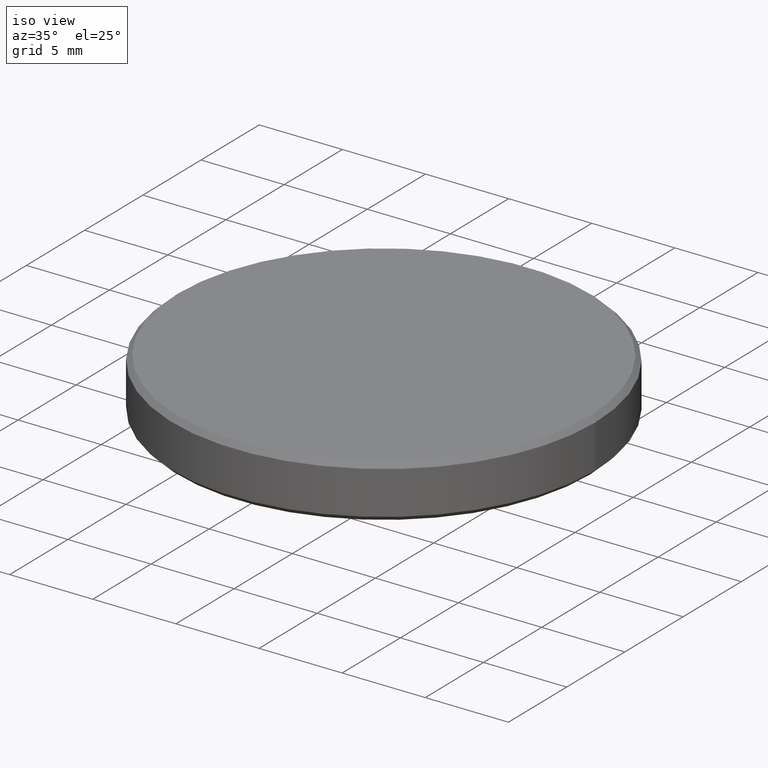
[diagram: clean part render]
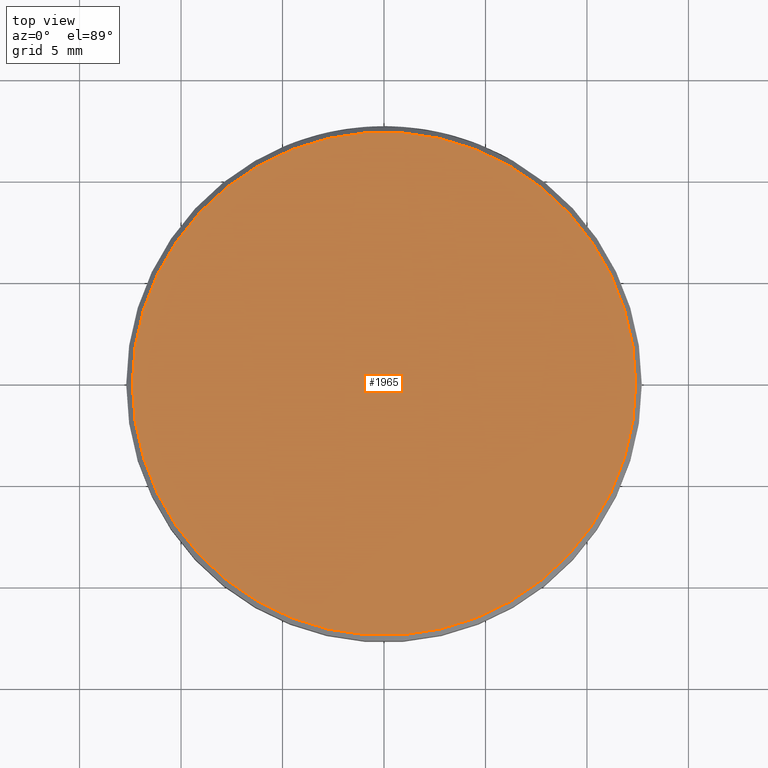
[diagram: tour spotlight — one face highlighted and labeled with its STEP entity id]
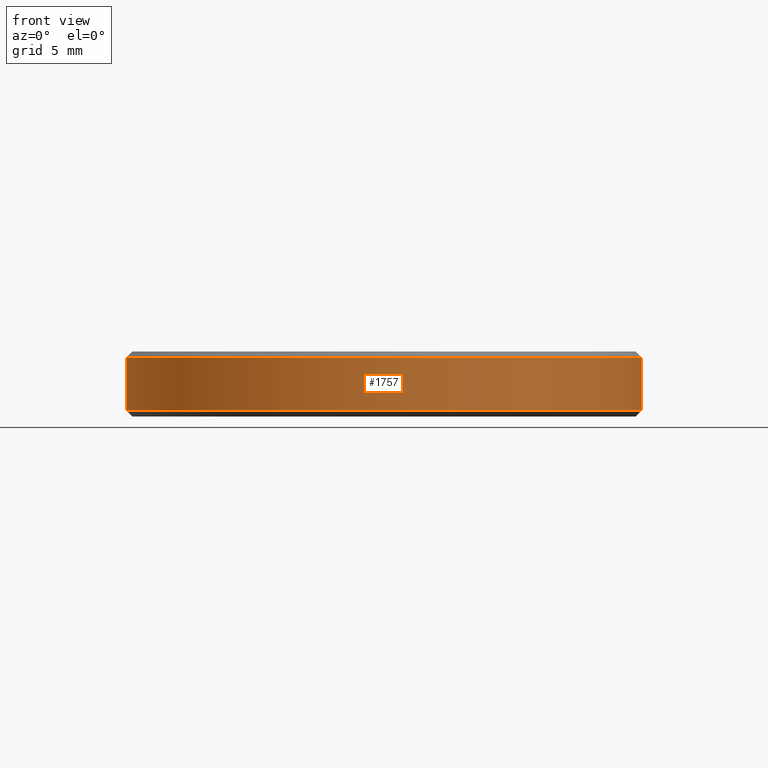
[diagram: tour spotlight — one face highlighted and labeled with its STEP entity id]
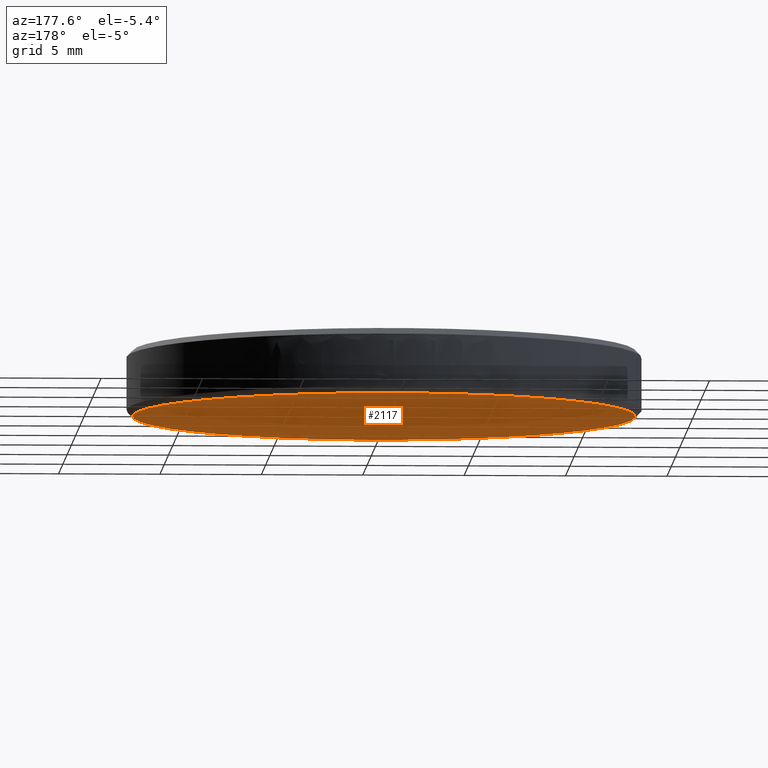
[diagram: tour spotlight — one face highlighted and labeled with its STEP entity id]
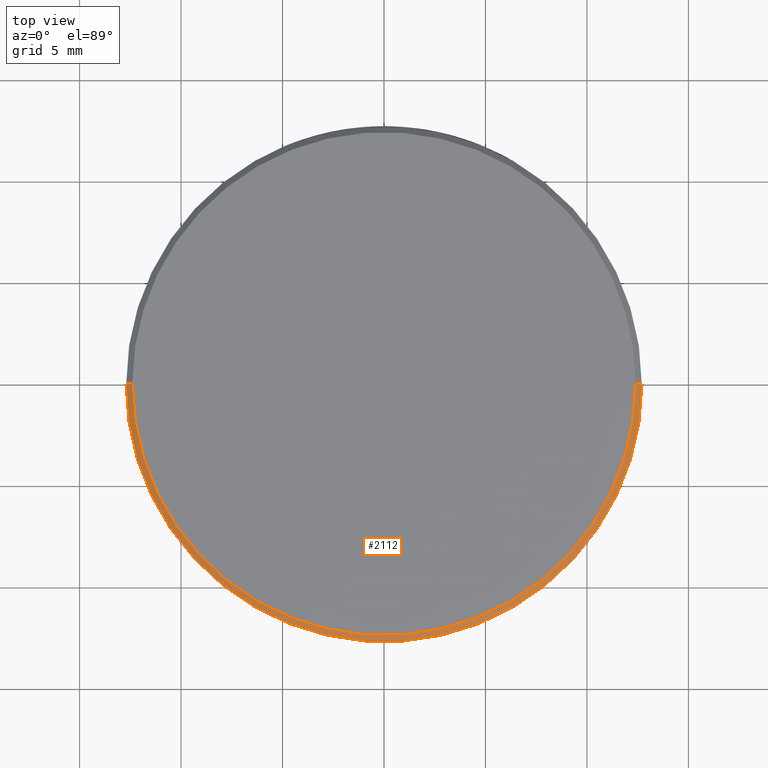
[diagram: tour spotlight — one face highlighted and labeled with its STEP entity id]
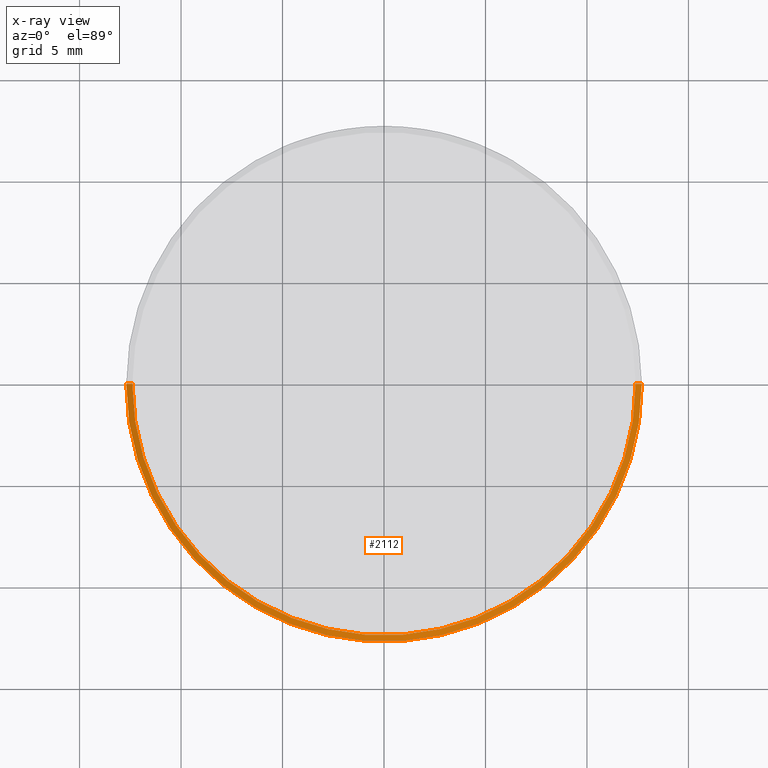
[diagram: x-ray of the same camera — body ghosted, this tour face saturated]
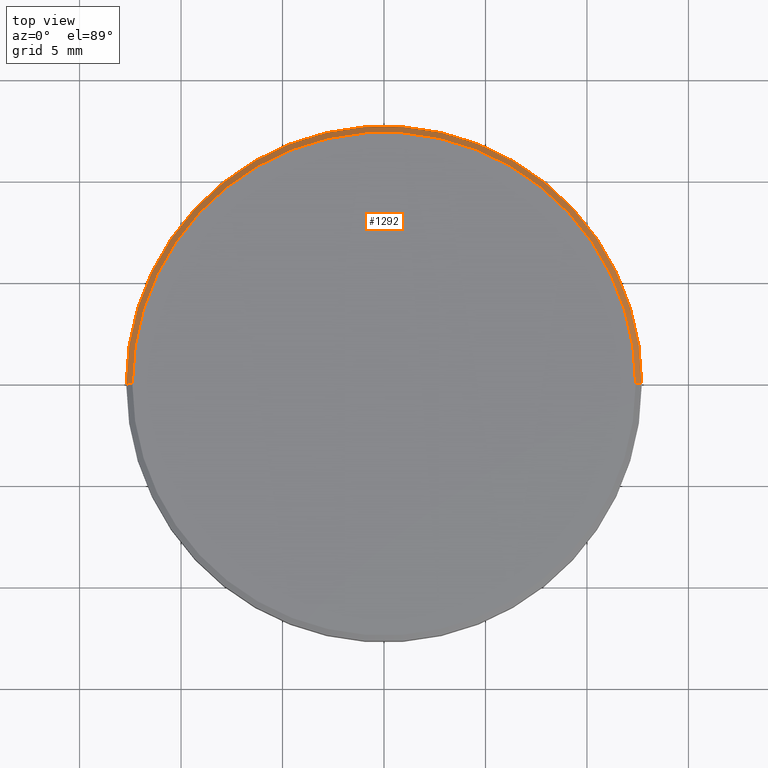
[diagram: tour spotlight — one face highlighted and labeled with its STEP entity id]
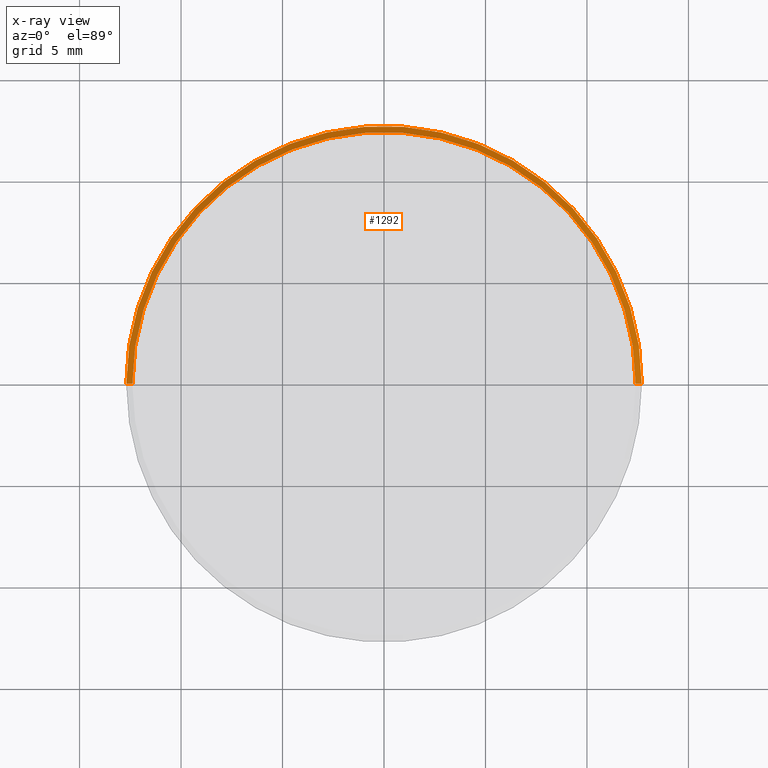
[diagram: x-ray of the same camera — body ghosted, this tour face saturated]
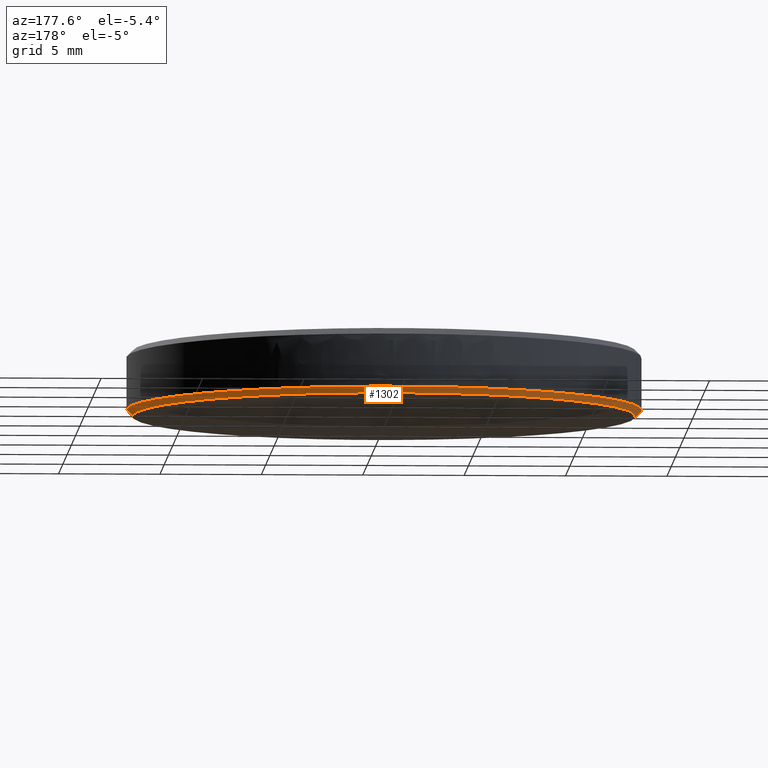
[diagram: tour spotlight — one face highlighted and labeled with its STEP entity id]
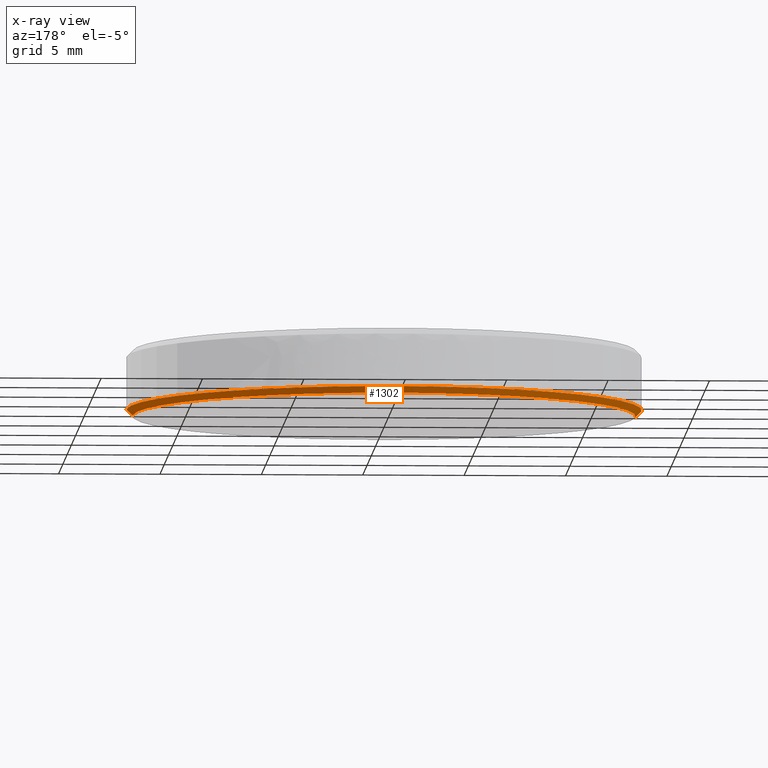
[diagram: x-ray of the same camera — body ghosted, this tour face saturated]
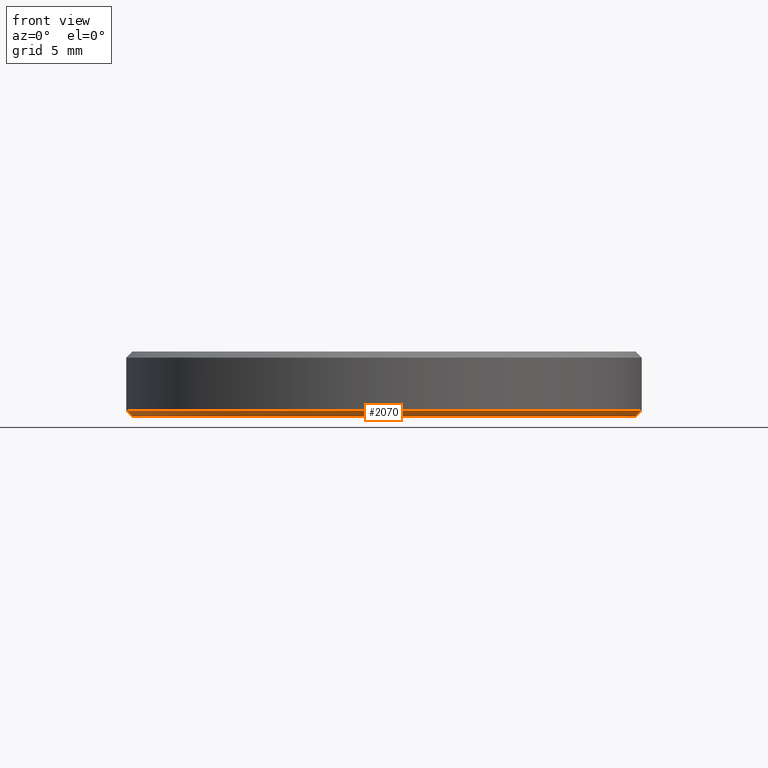
[diagram: tour spotlight — one face highlighted and labeled with its STEP entity id]
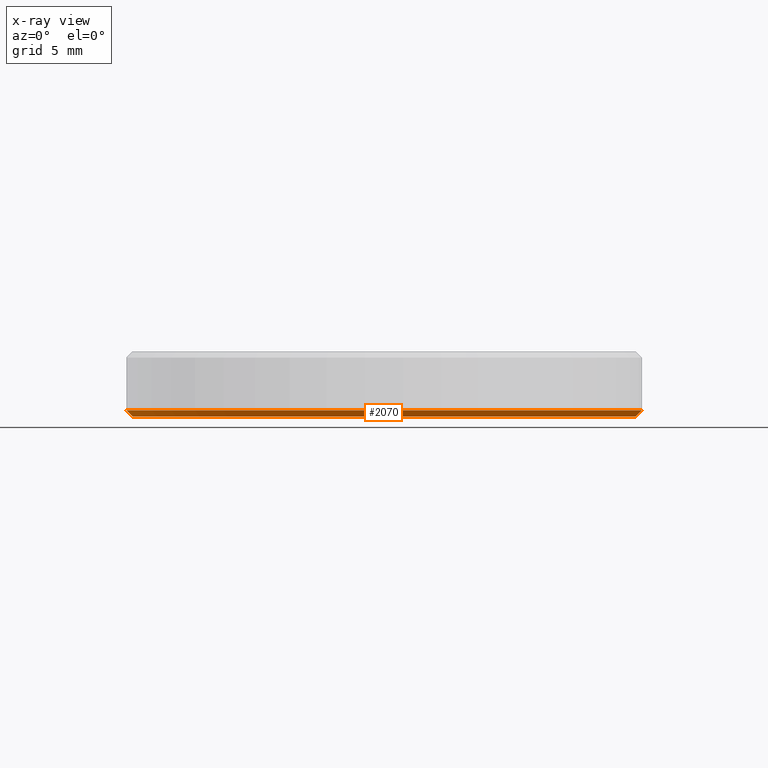
[diagram: x-ray of the same camera — body ghosted, this tour face saturated]
A machine part: a face-by-face anatomy tour. The part has 21 B-rep faces; the first image is the clean iso view, then the 7 largest visible faces are spotlighted one at a time (largest first), each with its STEP entity span.

Face 1 — top view, entity #1965. In plain terms, the highlighted planar face has unit normal (-0, 0, 1).
Definition (entity closure, byte-faithful):
#941 = DIRECTION ( 'NONE',  ( -0.0000000000000000000, 0.0000000000000000000, 1.000000000000000000 ) ) ;
#956 = CARTESIAN_POINT ( 'NONE',  ( 1.557671338699901100E-015, -39.68355697996825200, 1.599999999999999200 ) ) ;
#973 = FACE_OUTER_BOUND ( 'NONE', #1964, .T. ) ;
#974 = DIRECTION ( 'NONE',  ( 1.000000000000000000, 0.0000000000000000000, 0.0000000000000000000 ) ) ;
#1055 = AXIS2_PLACEMENT_3D ( 'NONE', #956, #941, #974 ) ;
#1094 = PLANE ( 'NONE',  #1055 ) ;
#1149 = DIRECTION ( 'NONE',  ( -0.0000000000000000000, 0.0000000000000000000, 1.000000000000000000 ) ) ;
#1222 = DIRECTION ( 'NONE',  ( 1.000000000000000000, 0.0000000000000000000, 0.0000000000000000000 ) ) ;
#1223 = AXIS2_PLACEMENT_3D ( 'NONE', #1235, #1149, #1222 ) ;
#1235 = CARTESIAN_POINT ( 'NONE',  ( 0.0000000000000000000, 0.0000000000000000000, 1.599999999999999200 ) ) ;
#1256 = CIRCLE ( 'NONE', #1223, 12.39999999999999700 ) ;
#1289 = EDGE_CURVE ( 'NONE', #1315, #1293, #1992, .T. ) ;
#1293 = VERTEX_POINT ( 'NONE', #2229 ) ;
#1315 = VERTEX_POINT ( 'NONE', #2423 ) ;
#1964 = EDGE_LOOP ( 'NONE', ( #1966, #2057 ) ) ;
#1965 = ADVANCED_FACE ( 'NONE', ( #973 ), #1094, .T. ) ;
#1966 = ORIENTED_EDGE ( 'NONE', *, *, #2171, .T. ) ;
#1992 = CIRCLE ( 'NONE', #1993, 12.39999999999999700 ) ;
#1993 = AXIS2_PLACEMENT_3D ( 'NONE', #2046, #2094, #2087 ) ;
#2046 = CARTESIAN_POINT ( 'NONE',  ( 0.0000000000000000000, 0.0000000000000000000, 1.599999999999999200 ) ) ;
#2057 = ORIENTED_EDGE ( 'NONE', *, *, #1289, .T. ) ;
#2087 = DIRECTION ( 'NONE',  ( 1.000000000000000000, 0.0000000000000000000, 0.0000000000000000000 ) ) ;
#2094 = DIRECTION ( 'NONE',  ( -0.0000000000000000000, 0.0000000000000000000, 1.000000000000000000 ) ) ;
#2171 = EDGE_CURVE ( 'NONE', #1293, #1315, #1256, .T. ) ;
#2229 = CARTESIAN_POINT ( 'NONE',  ( -12.39999999999999700, 0.0000000000000000000, 1.599999999999999200 ) ) ;
#2423 = CARTESIAN_POINT ( 'NONE',  ( 12.39999999999999700, 1.536931732929928000E-015, 1.599999999999999200 ) ) ;

Face 2 — front view, entity #1757. In plain terms, the highlighted cylindrical surface (partial cylindrical patch) has radius 12.7 mm, axis along (0, 0, 1).
Definition (entity closure, byte-faithful):
#130 = DIRECTION ( 'NONE',  ( 0.0000000000000000000, 0.0000000000000000000, 1.000000000000000000 ) ) ;
#131 = VECTOR ( 'NONE', #130, 1000.000000000000000 ) ;
#136 = LINE ( 'NONE', #237, #131 ) ;
#150 = FACE_OUTER_BOUND ( 'NONE', #1747, .T. ) ;
#237 = CARTESIAN_POINT ( 'NONE',  ( -12.69999999999999900, 1.555301434917138400E-015, -1.600000000000000100 ) ) ;
#260 = CIRCLE ( 'NONE', #286, 12.69999999999999900 ) ;
#285 = DIRECTION ( 'NONE',  ( 0.0000000000000000000, 0.0000000000000000000, -1.000000000000000000 ) ) ;
#286 = AXIS2_PLACEMENT_3D ( 'NONE', #400, #285, #449 ) ;
#323 = AXIS2_PLACEMENT_3D ( 'NONE', #343, #333, #372 ) ;
#333 = DIRECTION ( 'NONE',  ( 0.0000000000000000000, 0.0000000000000000000, 1.000000000000000000 ) ) ;
#343 = CARTESIAN_POINT ( 'NONE',  ( 0.0000000000000000000, 0.0000000000000000000, -1.600000000000000100 ) ) ;
#371 = CYLINDRICAL_SURFACE ( 'NONE', #323, 12.69999999999999900 ) ;
#372 = DIRECTION ( 'NONE',  ( 1.000000000000000000, 0.0000000000000000000, 0.0000000000000000000 ) ) ;
#400 = CARTESIAN_POINT ( 'NONE',  ( 0.0000000000000000000, 0.0000000000000000000, 1.299999999999995800 ) ) ;
#411 = DIRECTION ( 'NONE',  ( 1.000000000000000000, 0.0000000000000000000, 0.0000000000000000000 ) ) ;
#412 = DIRECTION ( 'NONE',  ( -0.0000000000000000000, -0.0000000000000000000, 1.000000000000000000 ) ) ;
#413 = CARTESIAN_POINT ( 'NONE',  ( 0.0000000000000000000, 0.0000000000000000000, -1.300000000000000900 ) ) ;
#430 = AXIS2_PLACEMENT_3D ( 'NONE', #413, #412, #411 ) ;
#437 = CIRCLE ( 'NONE', #430, 12.69999999999999900 ) ;
#449 = DIRECTION ( 'NONE',  ( 1.000000000000000000, 0.0000000000000000000, 0.0000000000000000000 ) ) ;
#723 = DIRECTION ( 'NONE',  ( 0.0000000000000000000, 0.0000000000000000000, 1.000000000000000000 ) ) ;
#724 = VECTOR ( 'NONE', #723, 1000.000000000000000 ) ;
#795 = CARTESIAN_POINT ( 'NONE',  ( 12.69999999999999900, 0.0000000000000000000, -1.600000000000000100 ) ) ;
#796 = LINE ( 'NONE', #795, #724 ) ;
#1277 = VERTEX_POINT ( 'NONE', #1994 ) ;
#1314 = VERTEX_POINT ( 'NONE', #2418 ) ;
#1316 = VERTEX_POINT ( 'NONE', #2406 ) ;
#1324 = VERTEX_POINT ( 'NONE', #2332 ) ;
#1745 = ORIENTED_EDGE ( 'NONE', *, *, #1893, .F. ) ;
#1747 = EDGE_LOOP ( 'NONE', ( #1745, #1784, #1759, #1760 ) ) ;
#1757 = ADVANCED_FACE ( 'NONE', ( #150 ), #371, .T. ) ;
#1758 = EDGE_CURVE ( 'NONE', #1316, #1277, #260, .T. ) ;
#1759 = ORIENTED_EDGE ( 'NONE', *, *, #1901, .T. ) ;
#1760 = ORIENTED_EDGE ( 'NONE', *, *, #1758, .T. ) ;
#1783 = EDGE_CURVE ( 'NONE', #1314, #1324, #437, .T. ) ;
#1784 = ORIENTED_EDGE ( 'NONE', *, *, #1783, .T. ) ;
#1893 = EDGE_CURVE ( 'NONE', #1314, #1277, #136, .T. ) ;
#1901 = EDGE_CURVE ( 'NONE', #1324, #1316, #796, .T. ) ;
#1994 = CARTESIAN_POINT ( 'NONE',  ( -12.69999999999999900, 1.555301434917138400E-015, 1.299999999999995800 ) ) ;
#2332 = CARTESIAN_POINT ( 'NONE',  ( 12.69999999999999900, 0.0000000000000000000, -1.300000000000000900 ) ) ;
#2406 = CARTESIAN_POINT ( 'NONE',  ( 12.69999999999999900, 0.0000000000000000000, 1.299999999999995800 ) ) ;
#2418 = CARTESIAN_POINT ( 'NONE',  ( -12.69999999999999900, 1.555301434917138400E-015, -1.300000000000000900 ) ) ;

Face 3 — auxiliary view, entity #2117. In plain terms, the highlighted planar face has unit normal (-0, 0, 1).
Definition (entity closure, byte-faithful):
#923 = DIRECTION ( 'NONE',  ( 1.000000000000000000, 0.0000000000000000000, 0.0000000000000000000 ) ) ;
#924 = AXIS2_PLACEMENT_3D ( 'NONE', #1143, #1102, #923 ) ;
#954 = DIRECTION ( 'NONE',  ( 1.000000000000000000, 0.0000000000000000000, 0.0000000000000000000 ) ) ;
#955 = DIRECTION ( 'NONE',  ( -0.0000000000000000000, 0.0000000000000000000, 1.000000000000000000 ) ) ;
#964 = PLANE ( 'NONE',  #1148 ) ;
#1102 = DIRECTION ( 'NONE',  ( 0.0000000000000000000, -0.0000000000000000000, -1.000000000000000000 ) ) ;
#1122 = CARTESIAN_POINT ( 'NONE',  ( 1.557671338699901100E-015, -39.68355697996825200, -1.600000000000001000 ) ) ;
#1128 = FACE_OUTER_BOUND ( 'NONE', #2115, .T. ) ;
#1143 = CARTESIAN_POINT ( 'NONE',  ( 0.0000000000000000000, 0.0000000000000000000, -1.600000000000001000 ) ) ;
#1146 = CIRCLE ( 'NONE', #924, 12.40000000000000200 ) ;
#1148 = AXIS2_PLACEMENT_3D ( 'NONE', #1122, #955, #954 ) ;
#1317 = VERTEX_POINT ( 'NONE', #2419 ) ;
#1319 = EDGE_CURVE ( 'NONE', #1317, #1585, #2417, .T. ) ;
#1585 = VERTEX_POINT ( 'NONE', #2393 ) ;
#1967 = ORIENTED_EDGE ( 'NONE', *, *, #2071, .T. ) ;
#2071 = EDGE_CURVE ( 'NONE', #1585, #1317, #1146, .T. ) ;
#2115 = EDGE_LOOP ( 'NONE', ( #1967, #2168 ) ) ;
#2117 = ADVANCED_FACE ( 'NONE', ( #1128 ), #964, .F. ) ;
#2168 = ORIENTED_EDGE ( 'NONE', *, *, #1319, .T. ) ;
#2393 = CARTESIAN_POINT ( 'NONE',  ( 12.40000000000000200, 0.0000000000000000000, -1.600000000000001000 ) ) ;
#2402 = DIRECTION ( 'NONE',  ( 1.000000000000000000, 0.0000000000000000000, 0.0000000000000000000 ) ) ;
#2403 = DIRECTION ( 'NONE',  ( 0.0000000000000000000, -0.0000000000000000000, -1.000000000000000000 ) ) ;
#2404 = CARTESIAN_POINT ( 'NONE',  ( 0.0000000000000000000, 0.0000000000000000000, -1.600000000000001000 ) ) ;
#2405 = AXIS2_PLACEMENT_3D ( 'NONE', #2404, #2403, #2402 ) ;
#2417 = CIRCLE ( 'NONE', #2405, 12.40000000000000200 ) ;
#2419 = CARTESIAN_POINT ( 'NONE',  ( -12.40000000000000200, 1.536931732929928400E-015, -1.600000000000001000 ) ) ;

Face 4 — top view, entity #2112. An x-ray twin of the same camera follows (body ghosted, this face saturated) — the face is partly hidden behind the body. In plain terms, the highlighted conical surface has half-angle 45 deg.
Definition (entity closure, byte-faithful):
#260 = CIRCLE ( 'NONE', #286, 12.69999999999999900 ) ;
#285 = DIRECTION ( 'NONE',  ( 0.0000000000000000000, 0.0000000000000000000, -1.000000000000000000 ) ) ;
#286 = AXIS2_PLACEMENT_3D ( 'NONE', #400, #285, #449 ) ;
#400 = CARTESIAN_POINT ( 'NONE',  ( 0.0000000000000000000, 0.0000000000000000000, 1.299999999999995800 ) ) ;
#449 = DIRECTION ( 'NONE',  ( 1.000000000000000000, 0.0000000000000000000, 0.0000000000000000000 ) ) ;
#925 = CONICAL_SURFACE ( 'NONE', #948, 12.39999999999999700, 0.7853981633974482800 ) ;
#948 = AXIS2_PLACEMENT_3D ( 'NONE', #1125, #1124, #1123 ) ;
#1103 = FACE_OUTER_BOUND ( 'NONE', #2164, .T. ) ;
#1123 = DIRECTION ( 'NONE',  ( -1.000000000000000000, 0.0000000000000000000, 0.0000000000000000000 ) ) ;
#1124 = DIRECTION ( 'NONE',  ( 0.0000000000000000000, 0.0000000000000000000, -1.000000000000000000 ) ) ;
#1125 = CARTESIAN_POINT ( 'NONE',  ( 0.0000000000000000000, 0.0000000000000000000, 1.599999999999999200 ) ) ;
#1149 = DIRECTION ( 'NONE',  ( -0.0000000000000000000, 0.0000000000000000000, 1.000000000000000000 ) ) ;
#1222 = DIRECTION ( 'NONE',  ( 1.000000000000000000, 0.0000000000000000000, 0.0000000000000000000 ) ) ;
#1223 = AXIS2_PLACEMENT_3D ( 'NONE', #1235, #1149, #1222 ) ;
#1235 = CARTESIAN_POINT ( 'NONE',  ( 0.0000000000000000000, 0.0000000000000000000, 1.599999999999999200 ) ) ;
#1256 = CIRCLE ( 'NONE', #1223, 12.39999999999999700 ) ;
#1277 = VERTEX_POINT ( 'NONE', #1994 ) ;
#1288 = EDGE_CURVE ( 'NONE', #1315, #1316, #2092, .T. ) ;
#1293 = VERTEX_POINT ( 'NONE', #2229 ) ;
#1315 = VERTEX_POINT ( 'NONE', #2423 ) ;
#1316 = VERTEX_POINT ( 'NONE', #2406 ) ;
#1321 = EDGE_CURVE ( 'NONE', #1293, #1277, #2331, .T. ) ;
#1758 = EDGE_CURVE ( 'NONE', #1316, #1277, #260, .T. ) ;
#1956 = CARTESIAN_POINT ( 'NONE',  ( 12.39999999999999700, 1.518562030942717600E-015, 1.599999999999999200 ) ) ;
#1994 = CARTESIAN_POINT ( 'NONE',  ( -12.69999999999999900, 1.555301434917138400E-015, 1.299999999999995800 ) ) ;
#2049 = ORIENTED_EDGE ( 'NONE', *, *, #1758, .F. ) ;
#2090 = DIRECTION ( 'NONE',  ( 0.7071067811865474600, 8.659560562354932900E-017, -0.7071067811865474600 ) ) ;
#2091 = VECTOR ( 'NONE', #2090, 1000.000000000000100 ) ;
#2092 = LINE ( 'NONE', #1956, #2091 ) ;
#2112 = ADVANCED_FACE ( 'NONE', ( #1103 ), #925, .T. ) ;
#2114 = ORIENTED_EDGE ( 'NONE', *, *, #2171, .F. ) ;
#2136 = ORIENTED_EDGE ( 'NONE', *, *, #1288, .F. ) ;
#2164 = EDGE_LOOP ( 'NONE', ( #2136, #2114, #2170, #2049 ) ) ;
#2170 = ORIENTED_EDGE ( 'NONE', *, *, #1321, .T. ) ;
#2171 = EDGE_CURVE ( 'NONE', #1293, #1315, #1256, .T. ) ;
#2229 = CARTESIAN_POINT ( 'NONE',  ( -12.39999999999999700, 0.0000000000000000000, 1.599999999999999200 ) ) ;
#2328 = DIRECTION ( 'NONE',  ( -0.7071067811865474600, 0.0000000000000000000, -0.7071067811865474600 ) ) ;
#2329 = VECTOR ( 'NONE', #2328, 1000.000000000000100 ) ;
#2330 = CARTESIAN_POINT ( 'NONE',  ( -12.39999999999999700, 0.0000000000000000000, 1.599999999999999200 ) ) ;
#2331 = LINE ( 'NONE', #2330, #2329 ) ;
#2406 = CARTESIAN_POINT ( 'NONE',  ( 12.69999999999999900, 0.0000000000000000000, 1.299999999999995800 ) ) ;
#2423 = CARTESIAN_POINT ( 'NONE',  ( 12.39999999999999700, 1.536931732929928000E-015, 1.599999999999999200 ) ) ;

Face 5 — top view, entity #1292. An x-ray twin of the same camera follows (body ghosted, this face saturated) — the face is partly hidden behind the body. In plain terms, the highlighted conical surface has half-angle 45 deg.
Definition (entity closure, byte-faithful):
#1277 = VERTEX_POINT ( 'NONE', #1994 ) ;
#1278 = ORIENTED_EDGE ( 'NONE', *, *, #1287, .F. ) ;
#1284 = ORIENTED_EDGE ( 'NONE', *, *, #1289, .F. ) ;
#1286 = ORIENTED_EDGE ( 'NONE', *, *, #1288, .T. ) ;
#1287 = EDGE_CURVE ( 'NONE', #1277, #1316, #2017, .T. ) ;
#1288 = EDGE_CURVE ( 'NONE', #1315, #1316, #2092, .T. ) ;
#1289 = EDGE_CURVE ( 'NONE', #1315, #1293, #1992, .T. ) ;
#1292 = ADVANCED_FACE ( 'NONE', ( #2193 ), #2283, .T. ) ;
#1293 = VERTEX_POINT ( 'NONE', #2229 ) ;
#1306 = ORIENTED_EDGE ( 'NONE', *, *, #1321, .F. ) ;
#1315 = VERTEX_POINT ( 'NONE', #2423 ) ;
#1316 = VERTEX_POINT ( 'NONE', #2406 ) ;
#1321 = EDGE_CURVE ( 'NONE', #1293, #1277, #2331, .T. ) ;
#1510 = EDGE_LOOP ( 'NONE', ( #1284, #1286, #1278, #1306 ) ) ;
#1956 = CARTESIAN_POINT ( 'NONE',  ( 12.39999999999999700, 1.518562030942717600E-015, 1.599999999999999200 ) ) ;
#1992 = CIRCLE ( 'NONE', #1993, 12.39999999999999700 ) ;
#1993 = AXIS2_PLACEMENT_3D ( 'NONE', #2046, #2094, #2087 ) ;
#1994 = CARTESIAN_POINT ( 'NONE',  ( -12.69999999999999900, 1.555301434917138400E-015, 1.299999999999995800 ) ) ;
#2003 = AXIS2_PLACEMENT_3D ( 'NONE', #2039, #2038, #2037 ) ;
#2017 = CIRCLE ( 'NONE', #2003, 12.69999999999999900 ) ;
#2037 = DIRECTION ( 'NONE',  ( 1.000000000000000000, 0.0000000000000000000, 0.0000000000000000000 ) ) ;
#2038 = DIRECTION ( 'NONE',  ( 0.0000000000000000000, 0.0000000000000000000, -1.000000000000000000 ) ) ;
#2039 = CARTESIAN_POINT ( 'NONE',  ( 0.0000000000000000000, 0.0000000000000000000, 1.299999999999995800 ) ) ;
#2046 = CARTESIAN_POINT ( 'NONE',  ( 0.0000000000000000000, 0.0000000000000000000, 1.599999999999999200 ) ) ;
#2087 = DIRECTION ( 'NONE',  ( 1.000000000000000000, 0.0000000000000000000, 0.0000000000000000000 ) ) ;
#2090 = DIRECTION ( 'NONE',  ( 0.7071067811865474600, 8.659560562354932900E-017, -0.7071067811865474600 ) ) ;
#2091 = VECTOR ( 'NONE', #2090, 1000.000000000000100 ) ;
#2092 = LINE ( 'NONE', #1956, #2091 ) ;
#2094 = DIRECTION ( 'NONE',  ( -0.0000000000000000000, 0.0000000000000000000, 1.000000000000000000 ) ) ;
#2193 = FACE_OUTER_BOUND ( 'NONE', #1510, .T. ) ;
#2229 = CARTESIAN_POINT ( 'NONE',  ( -12.39999999999999700, 0.0000000000000000000, 1.599999999999999200 ) ) ;
#2260 = DIRECTION ( 'NONE',  ( -1.000000000000000000, 0.0000000000000000000, 0.0000000000000000000 ) ) ;
#2261 = AXIS2_PLACEMENT_3D ( 'NONE', #2285, #2284, #2260 ) ;
#2283 = CONICAL_SURFACE ( 'NONE', #2261, 12.39999999999999700, 0.7853981633974482800 ) ;
#2284 = DIRECTION ( 'NONE',  ( 0.0000000000000000000, 0.0000000000000000000, -1.000000000000000000 ) ) ;
#2285 = CARTESIAN_POINT ( 'NONE',  ( 0.0000000000000000000, 0.0000000000000000000, 1.599999999999999200 ) ) ;
#2328 = DIRECTION ( 'NONE',  ( -0.7071067811865474600, 0.0000000000000000000, -0.7071067811865474600 ) ) ;
#2329 = VECTOR ( 'NONE', #2328, 1000.000000000000100 ) ;
#2330 = CARTESIAN_POINT ( 'NONE',  ( -12.39999999999999700, 0.0000000000000000000, 1.599999999999999200 ) ) ;
#2331 = LINE ( 'NONE', #2330, #2329 ) ;
#2406 = CARTESIAN_POINT ( 'NONE',  ( 12.69999999999999900, 0.0000000000000000000, 1.299999999999995800 ) ) ;
#2423 = CARTESIAN_POINT ( 'NONE',  ( 12.39999999999999700, 1.536931732929928000E-015, 1.599999999999999200 ) ) ;

Face 6 — auxiliary view, entity #1302. An x-ray twin of the same camera follows (body ghosted, this face saturated) — the face is partly hidden behind the body. In plain terms, the highlighted conical surface has half-angle 45 deg.
Definition (entity closure, byte-faithful):
#1290 = ORIENTED_EDGE ( 'NONE', *, *, #1319, .F. ) ;
#1291 = ORIENTED_EDGE ( 'NONE', *, *, #1320, .F. ) ;
#1302 = ADVANCED_FACE ( 'NONE', ( #2194 ), #2227, .T. ) ;
#1304 = ORIENTED_EDGE ( 'NONE', *, *, #1307, .T. ) ;
#1307 = EDGE_CURVE ( 'NONE', #1317, #1314, #2295, .T. ) ;
#1313 = ORIENTED_EDGE ( 'NONE', *, *, #1325, .F. ) ;
#1314 = VERTEX_POINT ( 'NONE', #2418 ) ;
#1317 = VERTEX_POINT ( 'NONE', #2419 ) ;
#1319 = EDGE_CURVE ( 'NONE', #1317, #1585, #2417, .T. ) ;
#1320 = EDGE_CURVE ( 'NONE', #1585, #1324, #2407, .T. ) ;
#1324 = VERTEX_POINT ( 'NONE', #2332 ) ;
#1325 = EDGE_CURVE ( 'NONE', #1324, #1314, #2197, .T. ) ;
#1498 = EDGE_LOOP ( 'NONE', ( #1290, #1304, #1313, #1291 ) ) ;
#1585 = VERTEX_POINT ( 'NONE', #2393 ) ;
#2194 = FACE_OUTER_BOUND ( 'NONE', #1498, .T. ) ;
#2196 = CARTESIAN_POINT ( 'NONE',  ( 0.0000000000000000000, 0.0000000000000000000, -1.300000000000000900 ) ) ;
#2197 = CIRCLE ( 'NONE', #2338, 12.69999999999999900 ) ;
#2227 = CONICAL_SURFACE ( 'NONE', #2236, 12.69999999999999900, 0.7853981633974453900 ) ;
#2228 = DIRECTION ( 'NONE',  ( -0.0000000000000000000, -0.0000000000000000000, 1.000000000000000000 ) ) ;
#2236 = AXIS2_PLACEMENT_3D ( 'NONE', #2196, #2228, #2294 ) ;
#2294 = DIRECTION ( 'NONE',  ( 1.000000000000000000, 0.0000000000000000000, 0.0000000000000000000 ) ) ;
#2295 = LINE ( 'NONE', #2422, #2421 ) ;
#2326 = CARTESIAN_POINT ( 'NONE',  ( 0.0000000000000000000, 0.0000000000000000000, -1.300000000000000900 ) ) ;
#2332 = CARTESIAN_POINT ( 'NONE',  ( 12.69999999999999900, 0.0000000000000000000, -1.300000000000000900 ) ) ;
#2334 = DIRECTION ( 'NONE',  ( 0.7071067811865454600, 0.0000000000000000000, 0.7071067811865495700 ) ) ;
#2335 = VECTOR ( 'NONE', #2334, 1000.000000000000000 ) ;
#2336 = CARTESIAN_POINT ( 'NONE',  ( 12.69999999999999900, 0.0000000000000000000, -1.300000000000000900 ) ) ;
#2338 = AXIS2_PLACEMENT_3D ( 'NONE', #2326, #2397, #2396 ) ;
#2393 = CARTESIAN_POINT ( 'NONE',  ( 12.40000000000000200, 0.0000000000000000000, -1.600000000000001000 ) ) ;
#2396 = DIRECTION ( 'NONE',  ( 1.000000000000000000, 0.0000000000000000000, 0.0000000000000000000 ) ) ;
#2397 = DIRECTION ( 'NONE',  ( -0.0000000000000000000, -0.0000000000000000000, 1.000000000000000000 ) ) ;
#2402 = DIRECTION ( 'NONE',  ( 1.000000000000000000, 0.0000000000000000000, 0.0000000000000000000 ) ) ;
#2403 = DIRECTION ( 'NONE',  ( 0.0000000000000000000, -0.0000000000000000000, -1.000000000000000000 ) ) ;
#2404 = CARTESIAN_POINT ( 'NONE',  ( 0.0000000000000000000, 0.0000000000000000000, -1.600000000000001000 ) ) ;
#2405 = AXIS2_PLACEMENT_3D ( 'NONE', #2404, #2403, #2402 ) ;
#2407 = LINE ( 'NONE', #2336, #2335 ) ;
#2417 = CIRCLE ( 'NONE', #2405, 12.40000000000000200 ) ;
#2418 = CARTESIAN_POINT ( 'NONE',  ( -12.69999999999999900, 1.555301434917138400E-015, -1.300000000000000900 ) ) ;
#2419 = CARTESIAN_POINT ( 'NONE',  ( -12.40000000000000200, 1.536931732929928400E-015, -1.600000000000001000 ) ) ;
#2420 = DIRECTION ( 'NONE',  ( -0.7071067811865454600, 8.659560562354908200E-017, 0.7071067811865495700 ) ) ;
#2421 = VECTOR ( 'NONE', #2420, 1000.000000000000000 ) ;
#2422 = CARTESIAN_POINT ( 'NONE',  ( -12.69999999999999900, 1.555301434917138400E-015, -1.300000000000000900 ) ) ;

Face 7 — front view, entity #2070. An x-ray twin of the same camera follows (body ghosted, this face saturated) — the face is partly hidden behind the body. In plain terms, the highlighted conical surface has half-angle 45 deg.
Definition (entity closure, byte-faithful):
#411 = DIRECTION ( 'NONE',  ( 1.000000000000000000, 0.0000000000000000000, 0.0000000000000000000 ) ) ;
#412 = DIRECTION ( 'NONE',  ( -0.0000000000000000000, -0.0000000000000000000, 1.000000000000000000 ) ) ;
#413 = CARTESIAN_POINT ( 'NONE',  ( 0.0000000000000000000, 0.0000000000000000000, -1.300000000000000900 ) ) ;
#430 = AXIS2_PLACEMENT_3D ( 'NONE', #413, #412, #411 ) ;
#437 = CIRCLE ( 'NONE', #430, 12.69999999999999900 ) ;
#923 = DIRECTION ( 'NONE',  ( 1.000000000000000000, 0.0000000000000000000, 0.0000000000000000000 ) ) ;
#924 = AXIS2_PLACEMENT_3D ( 'NONE', #1143, #1102, #923 ) ;
#951 = FACE_OUTER_BOUND ( 'NONE', #1962, .T. ) ;
#1101 = CARTESIAN_POINT ( 'NONE',  ( 0.0000000000000000000, 0.0000000000000000000, -1.300000000000000900 ) ) ;
#1102 = DIRECTION ( 'NONE',  ( 0.0000000000000000000, -0.0000000000000000000, -1.000000000000000000 ) ) ;
#1137 = CONICAL_SURFACE ( 'NONE', #1142, 12.69999999999999900, 0.7853981633974453900 ) ;
#1141 = DIRECTION ( 'NONE',  ( 1.000000000000000000, 0.0000000000000000000, 0.0000000000000000000 ) ) ;
#1142 = AXIS2_PLACEMENT_3D ( 'NONE', #1101, #1144, #1141 ) ;
#1143 = CARTESIAN_POINT ( 'NONE',  ( 0.0000000000000000000, 0.0000000000000000000, -1.600000000000001000 ) ) ;
#1144 = DIRECTION ( 'NONE',  ( -0.0000000000000000000, -0.0000000000000000000, 1.000000000000000000 ) ) ;
#1146 = CIRCLE ( 'NONE', #924, 12.40000000000000200 ) ;
#1307 = EDGE_CURVE ( 'NONE', #1317, #1314, #2295, .T. ) ;
#1314 = VERTEX_POINT ( 'NONE', #2418 ) ;
#1317 = VERTEX_POINT ( 'NONE', #2419 ) ;
#1320 = EDGE_CURVE ( 'NONE', #1585, #1324, #2407, .T. ) ;
#1324 = VERTEX_POINT ( 'NONE', #2332 ) ;
#1585 = VERTEX_POINT ( 'NONE', #2393 ) ;
#1783 = EDGE_CURVE ( 'NONE', #1314, #1324, #437, .T. ) ;
#1962 = EDGE_LOOP ( 'NONE', ( #2113, #2065, #1963, #2116 ) ) ;
#1963 = ORIENTED_EDGE ( 'NONE', *, *, #1320, .T. ) ;
#2065 = ORIENTED_EDGE ( 'NONE', *, *, #2071, .F. ) ;
#2070 = ADVANCED_FACE ( 'NONE', ( #951 ), #1137, .T. ) ;
#2071 = EDGE_CURVE ( 'NONE', #1585, #1317, #1146, .T. ) ;
#2113 = ORIENTED_EDGE ( 'NONE', *, *, #1307, .F. ) ;
#2116 = ORIENTED_EDGE ( 'NONE', *, *, #1783, .F. ) ;
#2295 = LINE ( 'NONE', #2422, #2421 ) ;
#2332 = CARTESIAN_POINT ( 'NONE',  ( 12.69999999999999900, 0.0000000000000000000, -1.300000000000000900 ) ) ;
#2334 = DIRECTION ( 'NONE',  ( 0.7071067811865454600, 0.0000000000000000000, 0.7071067811865495700 ) ) ;
#2335 = VECTOR ( 'NONE', #2334, 1000.000000000000000 ) ;
#2336 = CARTESIAN_POINT ( 'NONE',  ( 12.69999999999999900, 0.0000000000000000000, -1.300000000000000900 ) ) ;
#2393 = CARTESIAN_POINT ( 'NONE',  ( 12.40000000000000200, 0.0000000000000000000, -1.600000000000001000 ) ) ;
#2407 = LINE ( 'NONE', #2336, #2335 ) ;
#2418 = CARTESIAN_POINT ( 'NONE',  ( -12.69999999999999900, 1.555301434917138400E-015, -1.300000000000000900 ) ) ;
#2419 = CARTESIAN_POINT ( 'NONE',  ( -12.40000000000000200, 1.536931732929928400E-015, -1.600000000000001000 ) ) ;
#2420 = DIRECTION ( 'NONE',  ( -0.7071067811865454600, 8.659560562354908200E-017, 0.7071067811865495700 ) ) ;
#2421 = VECTOR ( 'NONE', #2420, 1000.000000000000000 ) ;
#2422 = CARTESIAN_POINT ( 'NONE',  ( -12.69999999999999900, 1.555301434917138400E-015, -1.300000000000000900 ) ) ;